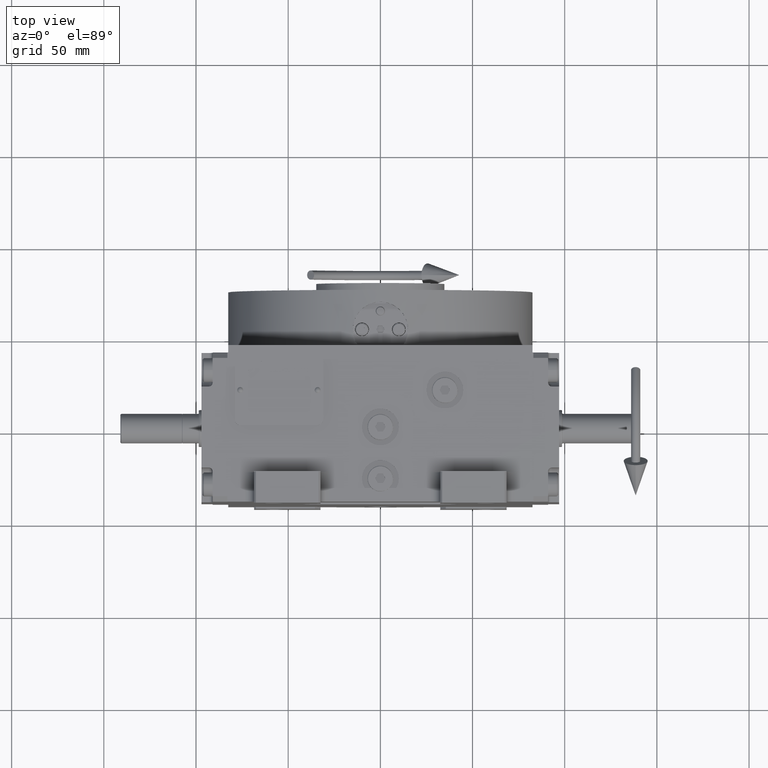
[diagram: clean part render]
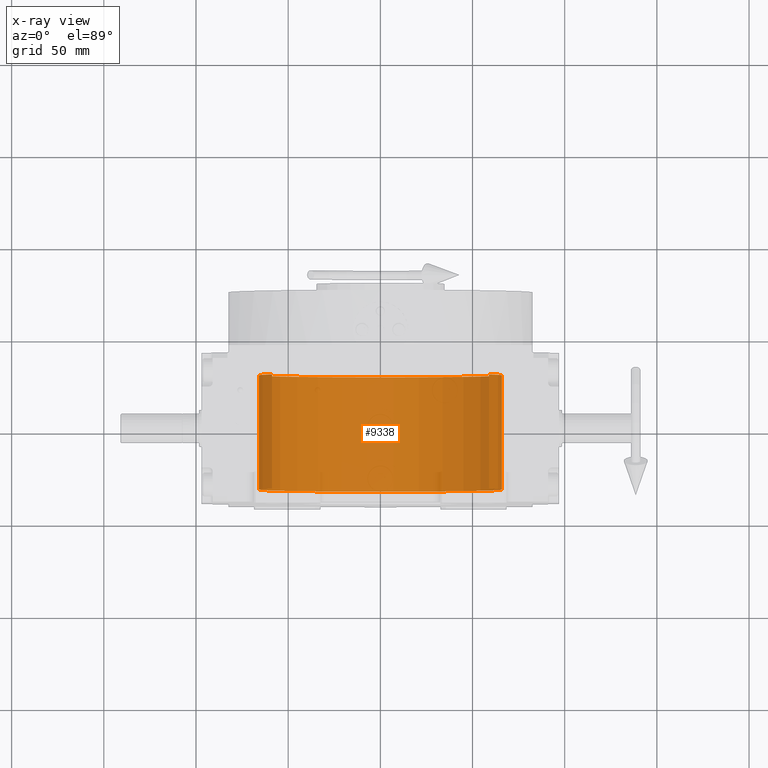
[diagram: x-ray — body ghosted, one internal face saturated and labeled with its STEP entity id]
A machine part, top view, then the same camera in x-ray: the body is ghosted and one INTERNAL B-rep face — a face not visible from any outside direction — is saturated and labeled: STEP entity #9338.
In plain terms, the highlighted cylindrical surface (partial cylindrical patch) has radius 66 mm, axis along (0, 1, 0).
Its self-contained STEP definition (entity closure, byte-faithful):
#152 = DIRECTION ( 'NONE',  ( -0.000000000000000000, 1.000000000000000000, -0.000000000000000000 ) ) ;
#457 = CYLINDRICAL_SURFACE ( 'NONE', #3096, 66.00000000000000000 ) ;
#1407 = FACE_OUTER_BOUND ( 'NONE', #2192, .T. ) ;
#2166 = VERTEX_POINT ( 'NONE', #34832 ) ;
#2192 = EDGE_LOOP ( 'NONE', ( #27026, #27943, #48199, #52312 ) ) ;
#3096 = AXIS2_PLACEMENT_3D ( 'NONE', #39947, #60274, #15372 ) ;
#4179 = AXIS2_PLACEMENT_3D ( 'NONE', #5071, #40967, #5387 ) ;
#5071 = CARTESIAN_POINT ( 'NONE',  ( 0.000000000000000000, 30.00000000000001421, 0.000000000000000000 ) ) ;
#5387 = DIRECTION ( 'NONE',  ( 0.000000000000000000, 0.000000000000000000, 1.000000000000000000 ) ) ;
#6051 = DIRECTION ( 'NONE',  ( 0.000000000000000000, -1.000000000000000000, 0.000000000000000000 ) ) ;
#9284 = EDGE_CURVE ( 'NONE', #46783, #2166, #14374, .T. ) ;
#9338 = ADVANCED_FACE ( 'NONE', ( #1407 ), #457, .F. ) ;
#14374 = CIRCLE ( 'NONE', #50479, 66.00000000000000000 ) ;
#14940 = VERTEX_POINT ( 'NONE', #28150 ) ;
#15129 = EDGE_CURVE ( 'NONE', #46783, #59036, #40384, .T. ) ;
#15372 = DIRECTION ( 'NONE',  ( 0.000000000000000000, 0.000000000000000000, 1.000000000000000000 ) ) ;
#19900 = DIRECTION ( 'NONE',  ( 0.000000000000000000, 0.000000000000000000, 1.000000000000000000 ) ) ;
#25914 = CIRCLE ( 'NONE', #4179, 66.00000000000000000 ) ;
#27026 = ORIENTED_EDGE ( 'NONE', *, *, #56424, .T. ) ;
#27943 = ORIENTED_EDGE ( 'NONE', *, *, #9284, .F. ) ;
#28150 = CARTESIAN_POINT ( 'NONE',  ( -58.78775382679628336, 30.00000000000001421, 30.00000000000000000 ) ) ;
#33842 = CARTESIAN_POINT ( 'NONE',  ( 58.78775382679628336, 30.00000000000001421, 30.00000000000000000 ) ) ;
#34787 = CARTESIAN_POINT ( 'NONE',  ( 0.000000000000000000, -31.99999999999998579, 0.000000000000000000 ) ) ;
#34800 = VECTOR ( 'NONE', #60381, 1000.000000000000000 ) ;
#34832 = CARTESIAN_POINT ( 'NONE',  ( -58.78775382679628336, -31.99999999999998579, 30.00000000000000000 ) ) ;
#35507 = CARTESIAN_POINT ( 'NONE',  ( -58.78775382679628336, 98.15000000000000568, 30.00000000000000000 ) ) ;
#39947 = CARTESIAN_POINT ( 'NONE',  ( 0.000000000000000000, 98.15000000000000568, 0.000000000000000000 ) ) ;
#40384 = LINE ( 'NONE', #41013, #34800 ) ;
#40967 = DIRECTION ( 'NONE',  ( -0.000000000000000000, 1.000000000000000000, -0.000000000000000000 ) ) ;
#41013 = CARTESIAN_POINT ( 'NONE',  ( 58.78775382679628336, 98.15000000000000568, 30.00000000000000000 ) ) ;
#42519 = VECTOR ( 'NONE', #6051, 1000.000000000000000 ) ;
#44564 = CARTESIAN_POINT ( 'NONE',  ( 58.78775382679628336, -31.99999999999998579, 30.00000000000000000 ) ) ;
#46783 = VERTEX_POINT ( 'NONE', #44564 ) ;
#48199 = ORIENTED_EDGE ( 'NONE', *, *, #15129, .T. ) ;
#50479 = AXIS2_PLACEMENT_3D ( 'NONE', #34787, #152, #19900 ) ;
#50986 = LINE ( 'NONE', #35507, #42519 ) ;
#52312 = ORIENTED_EDGE ( 'NONE', *, *, #53621, .T. ) ;
#53621 = EDGE_CURVE ( 'NONE', #59036, #14940, #25914, .T. ) ;
#56424 = EDGE_CURVE ( 'NONE', #14940, #2166, #50986, .T. ) ;
#59036 = VERTEX_POINT ( 'NONE', #33842 ) ;
#60274 = DIRECTION ( 'NONE',  ( -0.000000000000000000, 1.000000000000000000, -0.000000000000000000 ) ) ;
#60381 = DIRECTION ( 'NONE',  ( -0.000000000000000000, 1.000000000000000000, -0.000000000000000000 ) ) ;